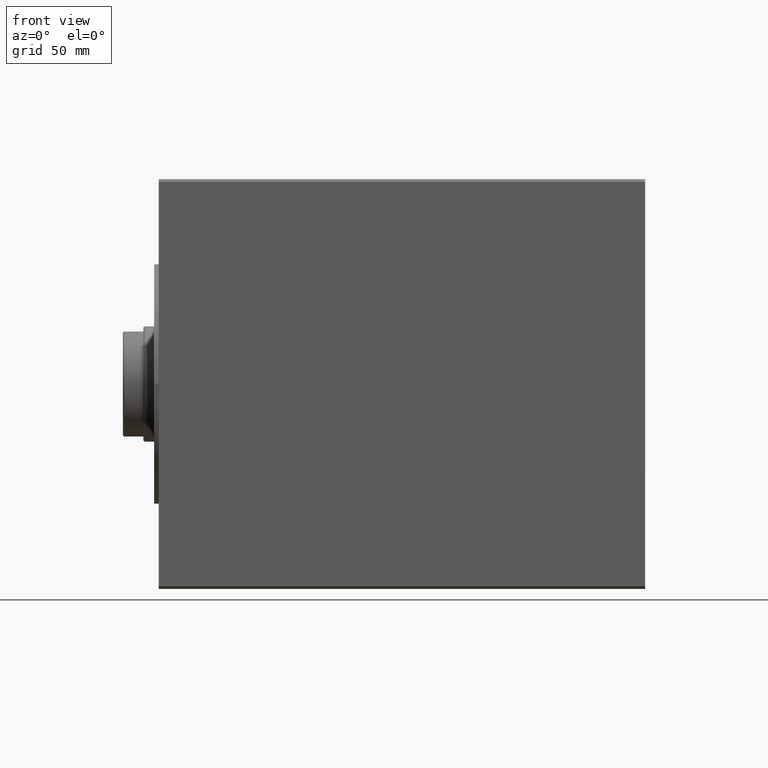
[diagram: clean part render]
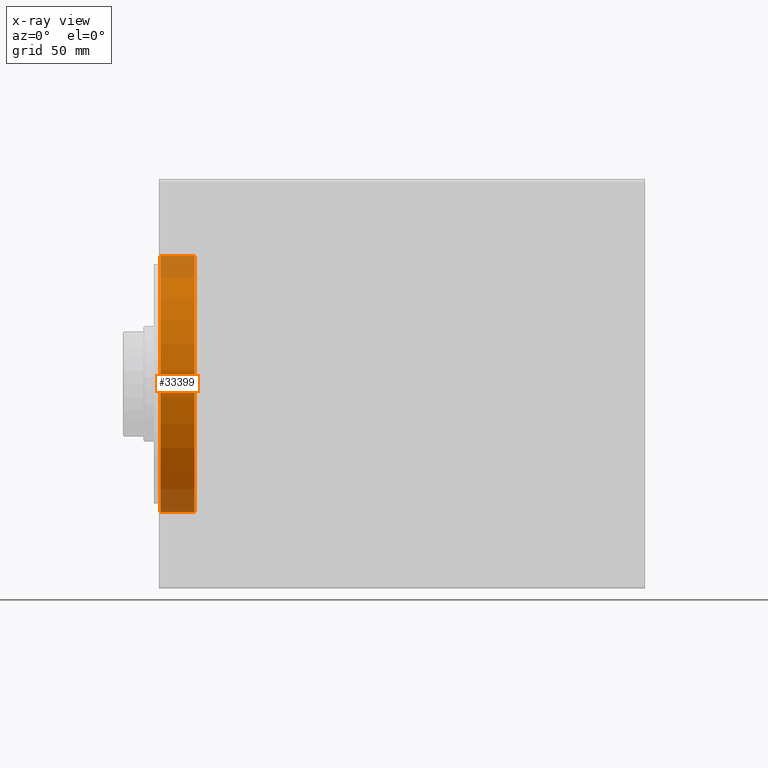
[diagram: x-ray — body ghosted, one internal face saturated and labeled with its STEP entity id]
A machine part, front view, then the same camera in x-ray: the body is ghosted and one INTERNAL B-rep face — a face not visible from any outside direction — is saturated and labeled: STEP entity #33399.
In plain terms, the highlighted cylindrical surface (partial cylindrical patch) has radius 50 mm, axis along (-1, -0, -0).
Its self-contained STEP definition (entity closure, byte-faithful):
#390 = AXIS2_PLACEMENT_3D ( 'NONE', #40031, #3310, #16889 ) ;
#2678 = ORIENTED_EDGE ( 'NONE', *, *, #10819, .F. ) ;
#3310 = DIRECTION ( 'NONE',  ( -1.000000000000000000, 0.000000000000000000, 0.000000000000000000 ) ) ;
#3353 = CARTESIAN_POINT ( 'NONE',  ( 0.6999999999999992895, 0.000000000000000000, 0.000000000000000000 ) ) ;
#3374 = VERTEX_POINT ( 'NONE', #29676 ) ;
#3528 = CARTESIAN_POINT ( 'NONE',  ( 0.6999999999999992895, 0.000000000000000000, 50.00000000000000000 ) ) ;
#4043 = LINE ( 'NONE', #8052, #4587 ) ;
#4587 = VECTOR ( 'NONE', #24739, 1000.000000000000000 ) ;
#5731 = EDGE_CURVE ( 'NONE', #3374, #7756, #4043, .T. ) ;
#7756 = VERTEX_POINT ( 'NONE', #3528 ) ;
#8052 = CARTESIAN_POINT ( 'NONE',  ( 14.00000000000000000, 0.000000000000000000, 50.00000000000000000 ) ) ;
#10819 = EDGE_CURVE ( 'NONE', #21694, #3374, #30937, .T. ) ;
#15615 = DIRECTION ( 'NONE',  ( 0.000000000000000000, 0.000000000000000000, 1.000000000000000000 ) ) ;
#15716 = AXIS2_PLACEMENT_3D ( 'NONE', #18962, #32524, #15615 ) ;
#16889 = DIRECTION ( 'NONE',  ( 0.000000000000000000, 0.000000000000000000, 1.000000000000000000 ) ) ;
#18962 = CARTESIAN_POINT ( 'NONE',  ( 14.00000000000000000, 0.000000000000000000, 0.000000000000000000 ) ) ;
#19590 = ORIENTED_EDGE ( 'NONE', *, *, #24588, .T. ) ;
#20015 = AXIS2_PLACEMENT_3D ( 'NONE', #3353, #43633, #20273 ) ;
#20273 = DIRECTION ( 'NONE',  ( 0.000000000000000000, 0.000000000000000000, -1.000000000000000000 ) ) ;
#20338 = CARTESIAN_POINT ( 'NONE',  ( 14.00000000000000000, 6.123233995736766085E-15, -50.00000000000000000 ) ) ;
#21694 = VERTEX_POINT ( 'NONE', #22347 ) ;
#22347 = CARTESIAN_POINT ( 'NONE',  ( 14.00000000000000000, 6.123233995736766085E-15, -50.00000000000000000 ) ) ;
#23011 = DIRECTION ( 'NONE',  ( -1.000000000000000000, -0.000000000000000000, -0.000000000000000000 ) ) ;
#24588 = EDGE_CURVE ( 'NONE', #36311, #7756, #39202, .T. ) ;
#24739 = DIRECTION ( 'NONE',  ( -1.000000000000000000, -0.000000000000000000, -0.000000000000000000 ) ) ;
#25415 = ORIENTED_EDGE ( 'NONE', *, *, #33960, .T. ) ;
#25851 = CYLINDRICAL_SURFACE ( 'NONE', #15716, 50.00000000000000000 ) ;
#26573 = LINE ( 'NONE', #20338, #34933 ) ;
#29531 = CARTESIAN_POINT ( 'NONE',  ( 0.6999999999999992895, 6.123233995736766085E-15, -50.00000000000000000 ) ) ;
#29676 = CARTESIAN_POINT ( 'NONE',  ( 14.00000000000000000, 0.000000000000000000, 50.00000000000000000 ) ) ;
#30937 = CIRCLE ( 'NONE', #390, 50.00000000000000000 ) ;
#32524 = DIRECTION ( 'NONE',  ( -1.000000000000000000, -0.000000000000000000, -0.000000000000000000 ) ) ;
#33399 = ADVANCED_FACE ( 'NONE', ( #35863 ), #25851, .F. ) ;
#33960 = EDGE_CURVE ( 'NONE', #21694, #36311, #26573, .T. ) ;
#34933 = VECTOR ( 'NONE', #23011, 1000.000000000000000 ) ;
#35863 = FACE_OUTER_BOUND ( 'NONE', #43668, .T. ) ;
#36311 = VERTEX_POINT ( 'NONE', #29531 ) ;
#36659 = ORIENTED_EDGE ( 'NONE', *, *, #5731, .F. ) ;
#39202 = CIRCLE ( 'NONE', #20015, 50.00000000000000000 ) ;
#40031 = CARTESIAN_POINT ( 'NONE',  ( 14.00000000000000000, 0.000000000000000000, 0.000000000000000000 ) ) ;
#43633 = DIRECTION ( 'NONE',  ( -1.000000000000000000, 0.000000000000000000, 0.000000000000000000 ) ) ;
#43668 = EDGE_LOOP ( 'NONE', ( #2678, #25415, #19590, #36659 ) ) ;